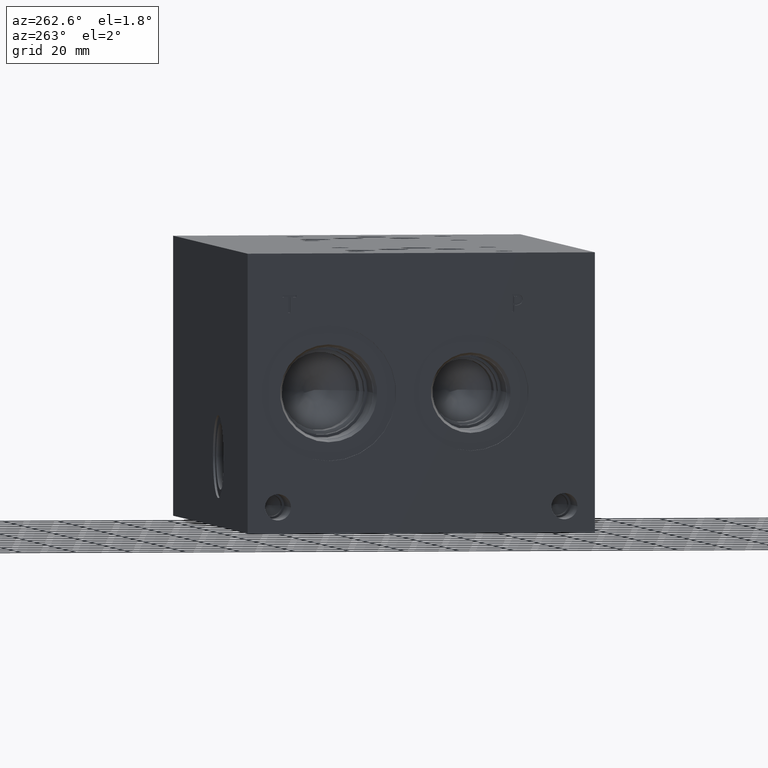
[diagram: clean part render]
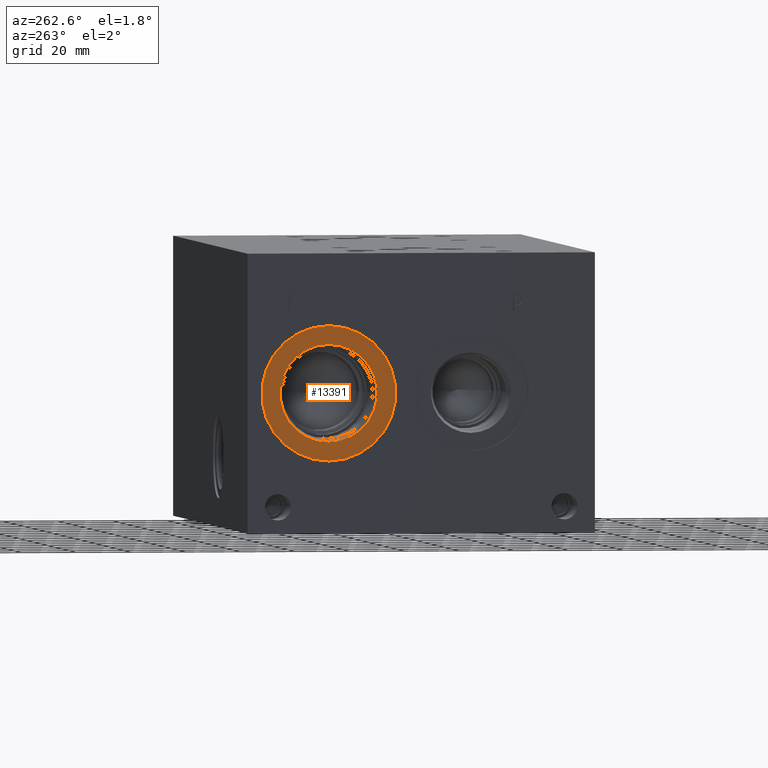
[diagram: same view with one face highlighted and labeled with its STEP entity id]
A machine part, auxiliary view. The second image highlights one B-rep face of the part: STEP entity #13391.
In plain terms, the highlighted planar face has unit normal (1, 0, 0).
Its self-contained STEP definition (entity closure, byte-faithful):
#272=CIRCLE('',#14039,24.5618);
#273=CIRCLE('',#14040,24.5618);
#274=CIRCLE('',#14042,17.7546);
#275=CIRCLE('',#14043,17.7546);
#550=FACE_BOUND('',#2306,.T.);
#937=PLANE('',#14041);
#1536=FACE_OUTER_BOUND('',#2305,.T.);
#2305=EDGE_LOOP('',(#11495,#11496));
#2306=EDGE_LOOP('',(#11497,#11498));
#6292=VERTEX_POINT('',#22736);
#6293=VERTEX_POINT('',#22738);
#6294=VERTEX_POINT('',#22742);
#6295=VERTEX_POINT('',#22743);
#8088=EDGE_CURVE('',#6292,#6293,#272,.T.);
#8089=EDGE_CURVE('',#6293,#6292,#273,.T.);
#8090=EDGE_CURVE('',#6294,#6295,#274,.T.);
#8091=EDGE_CURVE('',#6295,#6294,#275,.T.);
#11495=ORIENTED_EDGE('',*,*,#8089,.F.);
#11496=ORIENTED_EDGE('',*,*,#8088,.F.);
#11497=ORIENTED_EDGE('',*,*,#8090,.T.);
#11498=ORIENTED_EDGE('',*,*,#8091,.T.);
#13391=ADVANCED_FACE('',(#1536,#550),#937,.F.);
#14039=AXIS2_PLACEMENT_3D('',#22739,#16496,#16497);
#14040=AXIS2_PLACEMENT_3D('',#22740,#16498,#16499);
#14041=AXIS2_PLACEMENT_3D('',#22741,#16500,#16501);
#14042=AXIS2_PLACEMENT_3D('',#22744,#16502,#16503);
#14043=AXIS2_PLACEMENT_3D('',#22745,#16504,#16505);
#16496=DIRECTION('center_axis',(1.,0.,0.));
#16497=DIRECTION('ref_axis',(0.,0.,-1.));
#16498=DIRECTION('center_axis',(1.,0.,0.));
#16499=DIRECTION('ref_axis',(0.,0.,-1.));
#16500=DIRECTION('center_axis',(1.,0.,0.));
#16501=DIRECTION('ref_axis',(0.,0.,-1.));
#16502=DIRECTION('center_axis',(1.,0.,0.));
#16503=DIRECTION('ref_axis',(0.,0.,-1.));
#16504=DIRECTION('center_axis',(1.,0.,0.));
#16505=DIRECTION('ref_axis',(0.,0.,-1.));
#22736=CARTESIAN_POINT('',(0.7874,97.2566,26.2382));
#22738=CARTESIAN_POINT('',(0.7874,97.2566,75.3618));
#22739=CARTESIAN_POINT('Origin',(0.7874,97.2566,50.8));
#22740=CARTESIAN_POINT('Origin',(0.7874,97.2566,50.8));
#22741=CARTESIAN_POINT('Origin',(0.7874,97.2566,68.5546));
#22742=CARTESIAN_POINT('',(0.7874,97.2566,68.5546));
#22743=CARTESIAN_POINT('',(0.787400000000001,97.2566,33.0454));
#22744=CARTESIAN_POINT('Origin',(0.7874,97.2566,50.8));
#22745=CARTESIAN_POINT('Origin',(0.7874,97.2566,50.8));